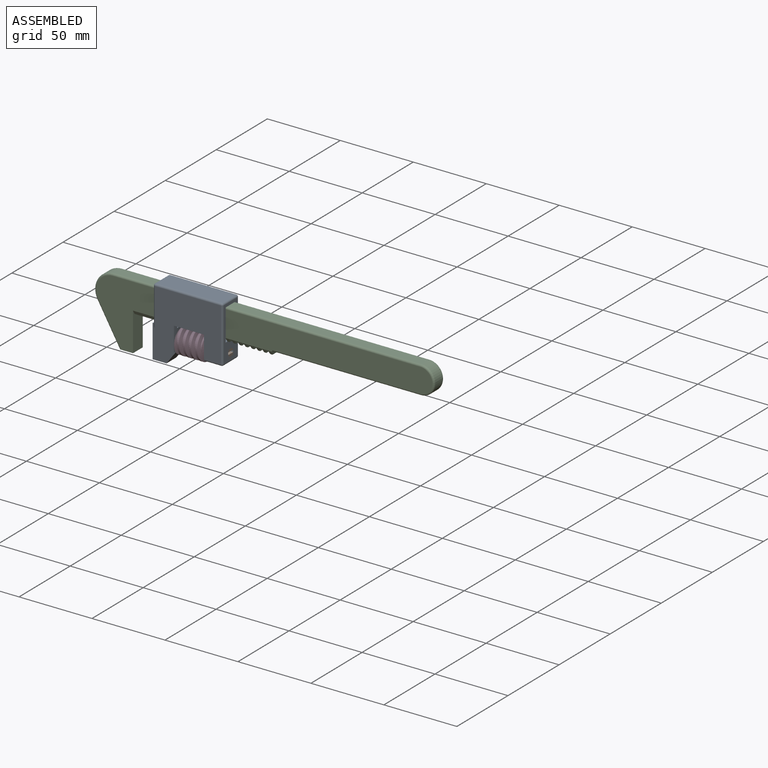
[diagram: assembled view]
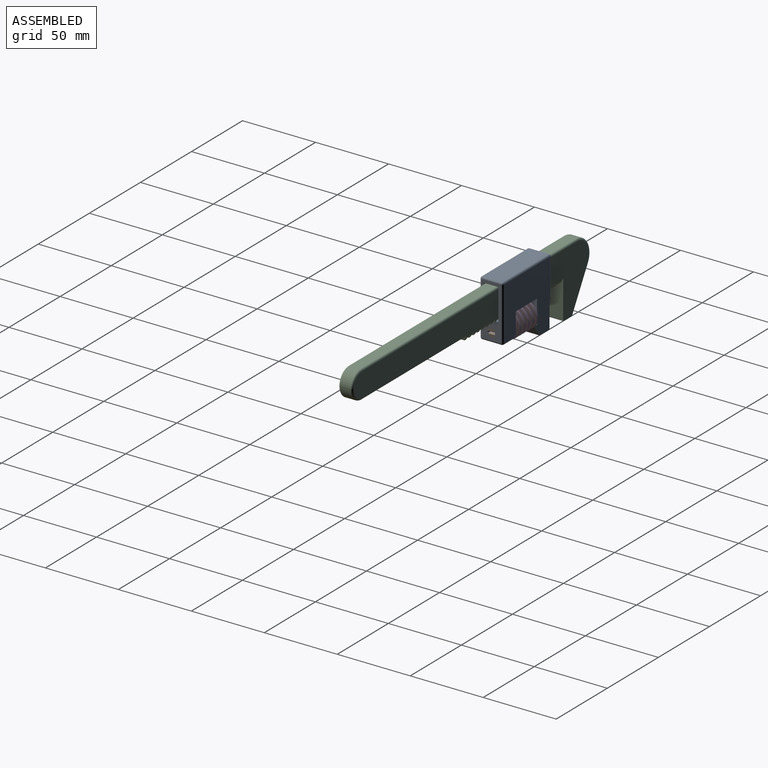
[diagram: assembled view, second angle]
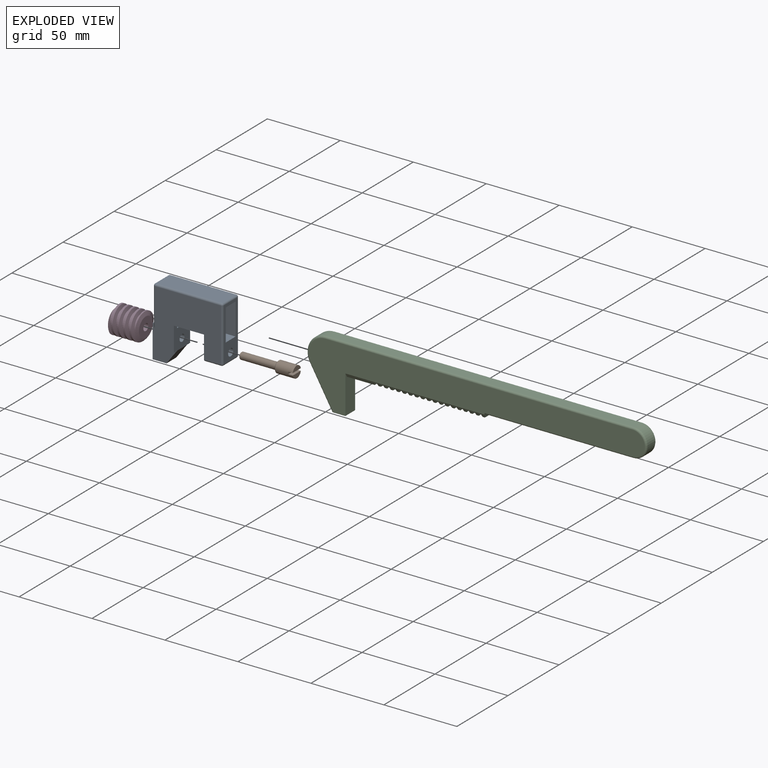
[diagram: exploded view]
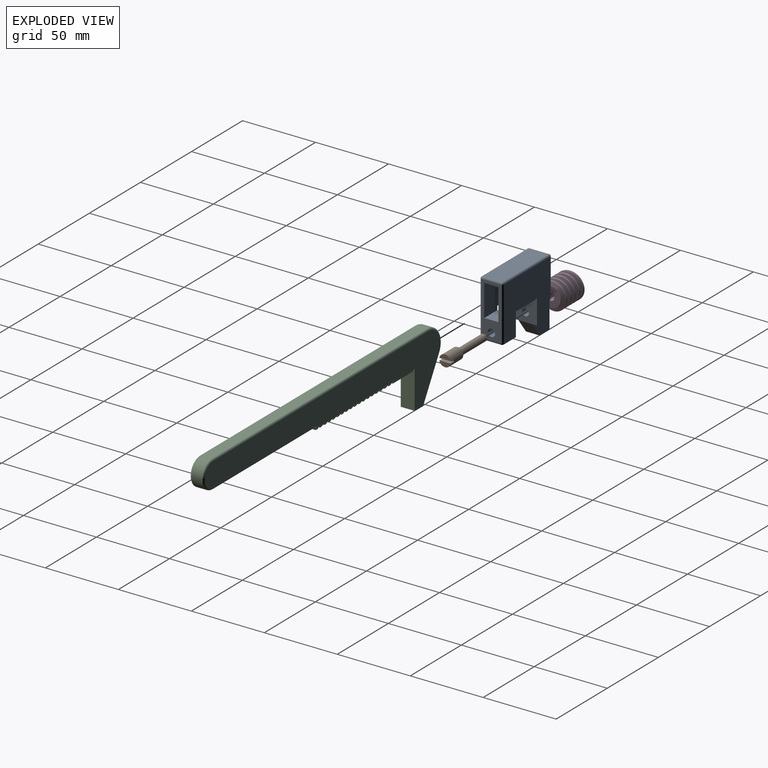
[diagram: exploded view, second angle]
ASSEMBLY  parts=4 mates=3
PART A: 43 faces, bbox 50.2x15.9x48.7 mm
  f0: plane 36.36x13.34mm, normal (1,0,0), area 255mm2, adj f19,f20,f21,f22,f25,f30,f33,f34
  f1: plane 24.92x13.34mm, normal (-1,0,0), area 122.7mm2, adj f6,f14,f16,f18,f19,f20,f21,f38
  f2: plane 16.68x15.88mm, normal (1,0,0), area 221.2mm2, adj f3,f5,f9,f10,f12,f14,f16,f18
  f3: plane 20.64x3.11mm, normal (0,0,-1), area 64.2mm2, adj f2,f4,f5,f19
  f4: plane 16.68x15.88mm, normal (-1,0,0), area 218mm2, adj f3,f5,f10,f12,f13,f19,f21,f22
  f5: plane 45.09x37.63mm, normal (0,1,0), area 1262.5mm2, adj f2,f3,f4,f16,f26,f27,f37,f42
  f6: plane 9.53x2.54mm, normal (0,0,1), area 24.2mm2, adj f1,f7,f15,f17
  f7: plane 22.53x9.53mm, normal (-1,0,0), area 214.6mm2, adj f6,f8,f15,f17
  f8: plane 9.53x9.53mm, normal (0,0,-1), area 90.7mm2, adj f7,f9,f15,f17
  f9: plane 9.82x9.53mm, normal (0.8,0,-0.6), area 116.5mm2, adj f2,f8,f15,f17
  f10: plane 45.09x37.63mm, normal (0,-1,0), area 1262.5mm2, adj f2,f4,f12,f14,f28,f29,f30,f38
  f11: plane 45.09x13.34mm, normal (0,0,1), area 601.2mm2, adj f26,f28,f33,f40
  f12: plane 20.64x3.11mm, normal (0,0,-1), area 64.2mm2, adj f2,f4,f10,f21
  f13: plane 13.34x11.43mm, normal (0,0,-1), area 152.4mm2, adj f4,f27,f29,f34
  f14: plane 14.29x12.71mm, normal (-0.66,0,-0.75), area 60.3mm2, adj f1,f2,f10,f15,f38
  f15: plane 22.53x16.83mm, normal (0,-1,0), area 252.5mm2, adj f6,f7,f8,f9,f14
  f16: plane 14.29x12.71mm, normal (-0.66,0,-0.75), area 60.3mm2, adj f1,f2,f5,f17,f42
  f17: plane 22.53x16.83mm, normal (0,1,0), area 252.5mm2, adj f6,f7,f8,f9,f16
  f18: plane 14.29x9.65mm, normal (0,0,1), area 137.9mm2, adj f1,f2,f19,f21
  f19: plane 47.63x21.72mm, normal (0,-1,0), area 979.2mm2, adj f0,f1,f2,f3,f4,f18,f20,f22
  f20: plane 47.63x9.65mm, normal (0,0,-1), area 459.7mm2, adj f0,f1,f19,f21
  f21: plane 47.63x21.72mm, normal (0,1,0), area 979.2mm2, adj f0,f1,f2,f4,f12,f18,f20,f22
  f22: plane 12.7x9.65mm, normal (0,0,1), area 122.6mm2, adj f0,f4,f19,f21
  f23: cylinder r=2.38mm len=4.76mm, axis (1,0,0), area 71.3mm2, adj f2,f24
  f24: plane 4.76x4.76mm, normal (1,0,0), area 17.8mm2, adj f23
  f25: cylinder r=2.54mm len=12.7mm, axis (1,0,0), area 202.7mm2, adj f0,f4
  f26: cylinder r=1.27mm len=45.09mm, axis (-1,0,0), area 89.9mm2, adj f5,f11,f35,f41
  f27: cylinder r=1.27mm len=11.43mm, axis (1,0,0), area 22.8mm2, adj f4,f5,f13,f36
  f28: cylinder r=1.27mm len=45.09mm, axis (1,0,0), area 89.9mm2, adj f10,f11,f31,f39
  f29: cylinder r=1.27mm len=11.43mm, axis (-1,0,0), area 22.8mm2, adj f4,f10,f13,f32
  f30: cylinder r=1.27mm len=36.36mm, axis (0,0,-1), area 72.5mm2, adj f0,f10,f31,f32
  f31: sphere r=1.27mm, area 2.5mm2, adj f28,f30,f33
  f32: sphere r=1.27mm, area 2.5mm2, adj f29,f30,f34
  f33: cylinder r=1.27mm len=13.34mm, axis (0,1,0), area 26.6mm2, adj f0,f11,f31,f35
  f34: cylinder r=1.27mm len=13.34mm, axis (0,1,0), area 26.6mm2, adj f0,f13,f32,f36
  f35: sphere r=1.27mm, area 2.5mm2, adj f26,f33,f37
  f36: sphere r=1.27mm, area 2.5mm2, adj f27,f34,f37
  f37: cylinder r=1.27mm len=36.36mm, axis (0,0,1), area 72.5mm2, adj f0,f5,f35,f36
  f38: cylinder r=1.27mm len=26.05mm, axis (0,0,1), area 50.5mm2, adj f1,f10,f14,f39
  f39: sphere r=1.27mm, area 2.5mm2, adj f28,f38,f40
  f40: cylinder r=1.27mm len=13.34mm, axis (0,1,0), area 26.6mm2, adj f1,f11,f39,f41
  f41: sphere r=1.27mm, area 2.5mm2, adj f26,f40,f42
  f42: cylinder r=1.27mm len=26.05mm, axis (0,0,-1), area 50.5mm2, adj f1,f5,f16,f41
PART B: 11 faces, bbox 38.1x7.9x7.9 mm
  f0: plane 7.78x3.18mm, normal (1,0,0), area 18.5mm2, adj f1,f7
  f1: cylinder r=3.97mm len=12.19mm, axis (1,0,0), area 293.9mm2, adj f0,f3,f6,f7,f8,f9
  f2: plane 3.75x3.75mm, normal (-1,0,0), area 11mm2, adj f10
  f3: plane 7.78x3.18mm, normal (1,0,0), area 18.5mm2, adj f1,f6
  f4: plane 6.92x6.92mm, normal (-1,0,0), area 19.8mm2, adj f5,f9
  f5: cylinder r=2.38mm len=24.89mm, axis (1,0,0), area 372.4mm2, adj f4,f10
  f6: plane 7.78x3.18mm, normal (0,0,-1), area 24.7mm2, adj f1,f3,f8
  f7: plane 7.78x3.18mm, normal (0,0,1), area 24.7mm2, adj f0,f1,f8
  f8: plane 7.94x1.59mm, normal (1,0,0), area 12.5mm2, adj f1,f6,f7
  f9: cone r=3.97mm half-angle=45deg, axis (1,0,0), area 16.8mm2, adj f1,f4
  f10: cone r=2.38mm half-angle=45deg, axis (1,0,0), area 9.6mm2, adj f2,f5
PART C: 95 faces, bbox 234.6x9.5x47.1 mm
  f0: plane 6.59x1.55mm, normal (0,0,-1), area 10.2mm2, adj f21,f23,f83,f84
  f1: plane 6.59x1.55mm, normal (0,0,-1), area 10.2mm2, adj f24,f26,f83,f84
  f2: plane 6.59x1.55mm, normal (0,0,-1), area 10.2mm2, adj f27,f29,f83,f84
  f3: plane 6.59x1.55mm, normal (0,0,-1), area 10.2mm2, adj f30,f32,f83,f84
  f4: plane 6.59x1.55mm, normal (0,0,-1), area 10.2mm2, adj f33,f35,f83,f84
  f5: plane 6.59x1.55mm, normal (0,0,-1), area 10.2mm2, adj f36,f38,f83,f84
  f6: plane 6.59x1.55mm, normal (0,0,-1), area 10.2mm2, adj f39,f41,f83,f84
  f7: plane 6.59x1.55mm, normal (0,0,-1), area 10.2mm2, adj f42,f44,f83,f84
  f8: plane 6.59x1.55mm, normal (0,0,-1), area 10.2mm2, adj f45,f47,f83,f84
  f9: plane 6.59x1.55mm, normal (0,0,-1), area 10.2mm2, adj f48,f50,f83,f84
  f10: plane 6.59x1.55mm, normal (0,0,-1), area 10.2mm2, adj f51,f53,f83,f84
  f11: plane 6.59x1.55mm, normal (0,0,-1), area 10.2mm2, adj f54,f56,f83,f84
  f12: plane 6.59x1.55mm, normal (0,0,-1), area 10.2mm2, adj f57,f59,f83,f84
  f13: plane 6.59x1.55mm, normal (0,0,-1), area 10.2mm2, adj f60,f62,f83,f84
  f14: plane 6.59x1.55mm, normal (0,0,-1), area 10.2mm2, adj f63,f65,f83,f84
  f15: plane 6.59x1.55mm, normal (0,0,-1), area 10.2mm2, adj f66,f68,f83,f84
  f16: plane 6.59x1.55mm, normal (0,0,-1), area 10.2mm2, adj f69,f72,f83,f84
  f17: plane 6.59x1.55mm, normal (0,0,-1), area 10.2mm2, adj f70,f73,f83,f84
  f18: plane 19.16x6.59mm, normal (0,0,-1), area 126.3mm2, adj f20,f76,f83,f84
  f19: plane 9.03x1.55mm, normal (0,0,-1), area 14mm2, adj f20,f21,f83,f84
  f20: plane 9.03x2.11mm, normal (0.97,0,-0.25), area 17mm2, adj f18,f19,f83,f84
  f21: plane 9.03x2.11mm, normal (-0.97,0,-0.25), area 17mm2, adj f0,f19,f83,f84
  f22: plane 9.03x1.55mm, normal (0,0,-1), area 14mm2, adj f23,f24,f83,f84
  f23: plane 9.03x2.11mm, normal (0.97,0,-0.25), area 17mm2, adj f0,f22,f83,f84
  f24: plane 9.03x2.11mm, normal (-0.97,0,-0.25), area 17mm2, adj f1,f22,f83,f84
  f25: plane 9.03x1.55mm, normal (0,0,-1), area 14mm2, adj f26,f27,f83,f84
  f26: plane 9.03x2.11mm, normal (0.97,0,-0.25), area 17mm2, adj f1,f25,f83,f84
  f27: plane 9.03x2.11mm, normal (-0.97,0,-0.25), area 17mm2, adj f2,f25,f83,f84
  f28: plane 9.03x1.55mm, normal (0,0,-1), area 14mm2, adj f29,f30,f83,f84
  f29: plane 9.03x2.11mm, normal (0.97,0,-0.25), area 17mm2, adj f2,f28,f83,f84
  f30: plane 9.03x2.11mm, normal (-0.97,0,-0.25), area 17mm2, adj f3,f28,f83,f84
  f31: plane 9.03x1.55mm, normal (0,0,-1), area 14mm2, adj f32,f33,f83,f84
  f32: plane 9.03x2.11mm, normal (0.97,0,-0.25), area 17mm2, adj f3,f31,f83,f84
  f33: plane 9.03x2.11mm, normal (-0.97,0,-0.25), area 17mm2, adj f4,f31,f83,f84
  f34: plane 9.03x1.55mm, normal (0,0,-1), area 14mm2, adj f35,f36,f83,f84
  f35: plane 9.03x2.11mm, normal (0.97,0,-0.25), area 17mm2, adj f4,f34,f83,f84
  f36: plane 9.03x2.11mm, normal (-0.97,0,-0.25), area 17mm2, adj f5,f34,f83,f84
  f37: plane 9.03x1.55mm, normal (0,0,-1), area 14mm2, adj f38,f39,f83,f84
  f38: plane 9.03x2.11mm, normal (0.97,0,-0.25), area 17mm2, adj f5,f37,f83,f84
  f39: plane 9.03x2.11mm, normal (-0.97,0,-0.25), area 17mm2, adj f6,f37,f83,f84
  f40: plane 9.03x1.55mm, normal (0,0,-1), area 14mm2, adj f41,f42,f83,f84
  f41: plane 9.03x2.11mm, normal (0.97,0,-0.25), area 17mm2, adj f6,f40,f83,f84
  f42: plane 9.03x2.11mm, normal (-0.97,0,-0.25), area 17mm2, adj f7,f40,f83,f84
  f43: plane 9.03x1.55mm, normal (0,0,-1), area 14mm2, adj f44,f45,f83,f84
  f44: plane 9.03x2.11mm, normal (0.97,0,-0.25), area 17mm2, adj f7,f43,f83,f84
  f45: plane 9.03x2.11mm, normal (-0.97,0,-0.25), area 17mm2, adj f8,f43,f83,f84
  f46: plane 9.03x1.55mm, normal (0,0,-1), area 14mm2, adj f47,f48,f83,f84
  f47: plane 9.03x2.11mm, normal (0.97,0,-0.25), area 17mm2, adj f8,f46,f83,f84
  f48: plane 9.03x2.11mm, normal (-0.97,0,-0.25), area 17mm2, adj f9,f46,f83,f84
  f49: plane 9.03x1.55mm, normal (0,0,-1), area 14mm2, adj f50,f51,f83,f84
  f50: plane 9.03x2.11mm, normal (0.97,0,-0.25), area 17mm2, adj f9,f49,f83,f84
  f51: plane 9.03x2.11mm, normal (-0.97,0,-0.25), area 17mm2, adj f10,f49,f83,f84
  f52: plane 9.03x1.55mm, normal (0,0,-1), area 14mm2, adj f53,f54,f83,f84
  f53: plane 9.03x2.11mm, normal (0.97,0,-0.25), area 17mm2, adj f10,f52,f83,f84
  f54: plane 9.03x2.11mm, normal (-0.97,0,-0.25), area 17mm2, adj f11,f52,f83,f84
  f55: plane 9.03x1.55mm, normal (0,0,-1), area 14mm2, adj f56,f57,f83,f84
  f56: plane 9.03x2.11mm, normal (0.97,0,-0.25), area 17mm2, adj f11,f55,f83,f84
  f57: plane 9.03x2.11mm, normal (-0.97,0,-0.25), area 17mm2, adj f12,f55,f83,f84
  f58: plane 9.03x1.55mm, normal (0,0,-1), area 14mm2, adj f59,f60,f83,f84
  f59: plane 9.03x2.11mm, normal (0.97,0,-0.25), area 17mm2, adj f12,f58,f83,f84
  f60: plane 9.03x2.11mm, normal (-0.97,0,-0.25), area 17mm2, adj f13,f58,f83,f84
  f61: plane 9.03x1.55mm, normal (0,0,-1), area 14mm2, adj f62,f63,f83,f84
  f62: plane 9.03x2.11mm, normal (0.97,0,-0.25), area 17mm2, adj f13,f61,f83,f84
  f63: plane 9.03x2.11mm, normal (-0.97,0,-0.25), area 17mm2, adj f14,f61,f83,f84
  f64: plane 9.03x1.55mm, normal (0,0,-1), area 14mm2, adj f65,f66,f83,f84
  f65: plane 9.03x2.11mm, normal (0.97,0,-0.25), area 17mm2, adj f14,f64,f83,f84
  f66: plane 9.03x2.11mm, normal (-0.97,0,-0.25), area 17mm2, adj f15,f64,f83,f84
  f67: plane 9.03x1.55mm, normal (0,0,-1), area 14mm2, adj f68,f69,f83,f84
  f68: plane 9.03x2.11mm, normal (0.97,0,-0.25), area 17mm2, adj f15,f67,f83,f84
  f69: plane 9.03x2.11mm, normal (-0.97,0,-0.25), area 17mm2, adj f16,f67,f83,f84
  f70: plane 9.53x3.81mm, normal (0.97,0,-0.25), area 21.9mm2, adj f17,f77,f81,f82,f83,f84,f89,f90
  f71: plane 9.03x1.55mm, normal (0,0,-1), area 14mm2, adj f72,f73,f83,f84
  f72: plane 9.03x2.11mm, normal (0.97,0,-0.25), area 17mm2, adj f16,f71,f83,f84
  f73: plane 9.03x2.11mm, normal (-0.97,0,-0.25), area 17mm2, adj f17,f71,f83,f84
  f74: plane 26.35x15.21mm, normal (-0.87,0,-0.5), area 212.5mm2, adj f75,f80,f85,f94
  f75: plane 9.53x9.53mm, normal (0,0,-1), area 89.9mm2, adj f74,f76,f81,f82,f85,f94
  f76: plane 26.35x9.53mm, normal (1,0,0), area 230.5mm2, adj f18,f75,f81,f82,f83,f84
  f77: plane 101.6x6.99mm, normal (0,0,-1), area 709.7mm2, adj f70,f78,f89,f90
  f78: cylinder r=9.53mm len=19.05mm, axis (0,1,0), area 209mm2, adj f77,f79,f88,f91
  f79: plane 210.59x6.99mm, normal (0,0,1), area 1471mm2, adj f78,f80,f87,f92
  f80: cylinder r=12.7mm len=19.05mm, axis (0,1,0), area 185.8mm2, adj f74,f79,f86,f93
  f81: plane 230.28x44.13mm, normal (0,-1,0), area 4306.6mm2, adj f70,f75,f76,f83,f90,f91,f92,f93
  f82: plane 230.28x44.13mm, normal (0,1,0), area 4306.6mm2, adj f70,f75,f76,f84,f85,f86,f87,f88
  f83: plane 95.25x2.54mm, normal (0,-0.87,-0.5), area 186.6mm2, adj f0,f1,f2,f3,f4,f5,f6,f7
  f84: plane 95.25x2.54mm, normal (0,0.87,-0.5), area 186.6mm2, adj f0,f1,f2,f3,f4,f5,f6,f7
  f85: cylinder r=1.27mm len=27.62mm, axis (0.5,0,-0.87), area 61.2mm2, adj f74,f75,f82,f86
  f86: torus R=11.43mm, axis (0,-1,0), area 51.1mm2, adj f80,f82,f85,f87
  f87: cylinder r=1.27mm len=210.59mm, axis (-1,0,0), area 420.1mm2, adj f79,f82,f86,f88
  f88: torus R=8.26mm, axis (0,-1,0), area 56.8mm2, adj f78,f82,f87,f89
  f89: cylinder r=1.27mm len=101.6mm, axis (1,0,0), area 202.4mm2, adj f70,f77,f82,f88
  f90: cylinder r=1.27mm len=101.6mm, axis (-1,0,0), area 202.4mm2, adj f70,f77,f81,f91
  f91: torus R=8.26mm, axis (0,-1,0), area 56.8mm2, adj f78,f81,f90,f92
  f92: cylinder r=1.27mm len=210.59mm, axis (1,0,0), area 420.1mm2, adj f79,f81,f91,f93
  f93: torus R=11.43mm, axis (0,-1,0), area 51.1mm2, adj f80,f81,f92,f94
  f94: cylinder r=1.27mm len=27.62mm, axis (-0.5,0,0.87), area 61.2mm2, adj f74,f75,f81,f93
PART D: 9 faces, bbox 22.3x19.6x22.6 mm
  f0: plane 13.46x13.46mm, normal (-1,0,0), area 124.5mm2, adj f2,f4
  f1: plane 13.46x13.46mm, normal (1,0,0), area 124.5mm2, adj f2,f3
  f2: cylinder r=2.38mm len=20.38mm, axis (-1,0,0), area 305mm2, adj f0,f1
  f3: cone r=6.73mm half-angle=75.5deg, axis (-1,0,0), area 78.1mm2, adj f1,f5,f6,f7,f8
  f4: cone r=9.53mm half-angle=75.5deg, axis (1,0,0), area 77.9mm2, adj f0,f5,f6,f7,f8
  f5: bspline ~22.58x21.57mm, area 640.7mm2, adj f3,f4,f7,f8
  f6: bspline ~22.58x21.57mm, area 640.5mm2, adj f3,f4,f7,f8
  f7: cylinder r=6.99mm len=20.25mm, axis (-1,0,0), area 306.8mm2, adj f3,f4,f5,f6
  f8: cylinder r=9.53mm len=19.05mm, axis (-1,0,0), area 386.1mm2, adj f3,f4,f5,f6
PLACE A t=(-15.03,0,15.02)mm
PLACE B t=(-15.03,0,-17.81)mm
PLACE C t=(118.2,0,2.32)mm
PLACE D t=(-50.78,0,-17.81)mm
MATE slider A.f0 <-> C.f76  axis (1,0,0) through (-15.03,0,-9.87)mm
MATE revolute A.f25 <-> D.f3  axis (1,0,0) through (-48.36,0,-17.81)mm
MATE fastened B.f1 <-> A.f25  axis (1,0,0) through (-15.03,0,-17.81)mm
